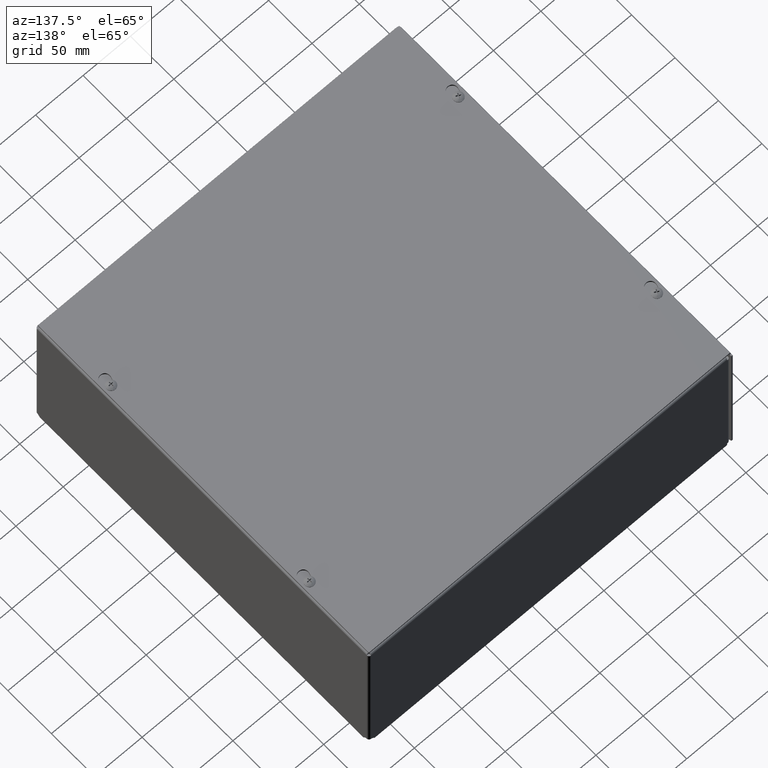
[diagram: clean part render]
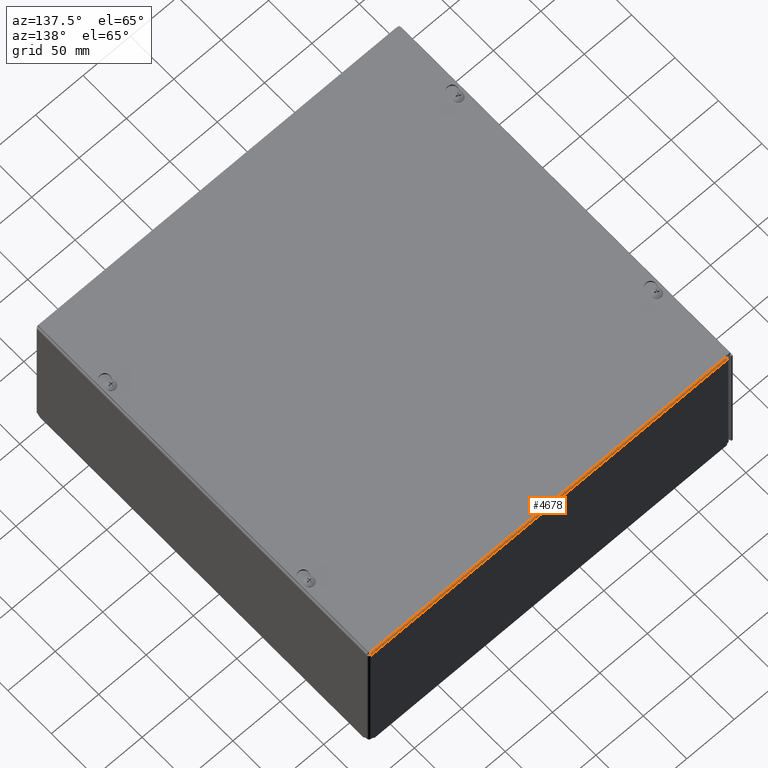
[diagram: same view with one face highlighted and labeled with its STEP entity id]
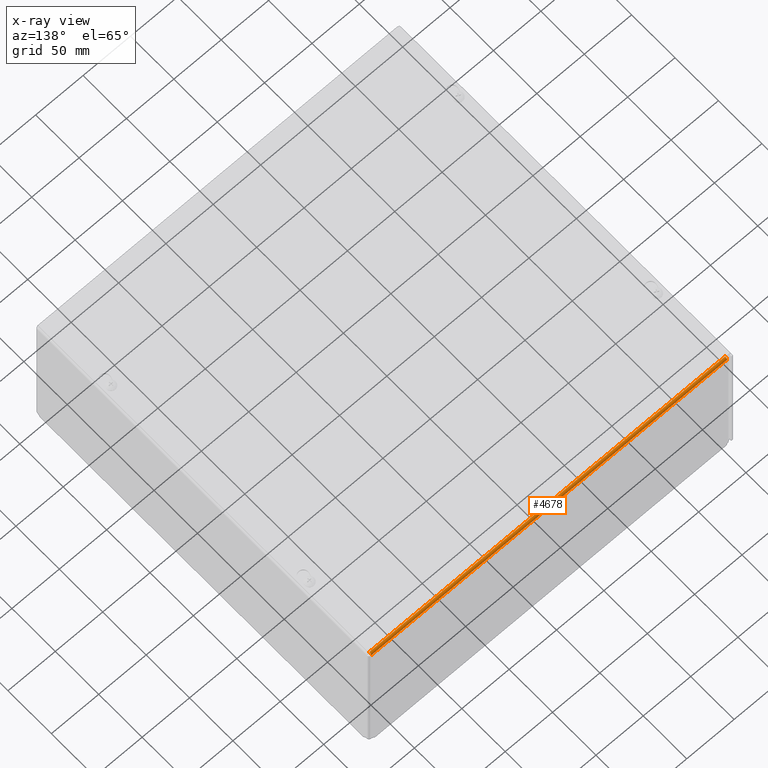
[diagram: x-ray of the same camera — body ghosted, the highlighted face saturated]
A machine part, auxiliary view. The second image highlights one B-rep face of the part: STEP entity #4678.
The next image is the same camera in x-ray: the body ghosted, the highlighted face saturated — about 0% of this face is hidden behind the body in this view.
In plain terms, the highlighted cylindrical surface (edge-blend (fillet) strip) has radius 2.3685 mm, axis along (1, 0, -0).
Its self-contained STEP definition (entity closure, byte-faithful):
#116=B_SPLINE_CURVE_WITH_KNOTS($,3,(#8407,#8408,#8409,#8410,#8411,#8412,
#8413),.UNSPECIFIED.,.F.,.F.,(4,3,4),(9.98864342678884E-014,0.897597901025787,
1.57079632679498),.UNSPECIFIED.);
#372=LINE($,#7845,#723);
#464=LINE($,#8386,#815);
#723=VECTOR($,#5692,14.8011043356626);
#815=VECTOR($,#5928,14.7900557922066);
#1075=CYLINDRICAL_SURFACE($,#5030,0.0932499999979968);
#1399=FACE_OUTER_BOUND($,#1754,.T.);
#1754=EDGE_LOOP($,(#3800,#3801,#3802,#3803));
#1941=CIRCLE($,#5027,0.0932500000000022);
#2217=VERTEX_POINT($,#7829);
#2223=VERTEX_POINT($,#7843);
#2278=VERTEX_POINT($,#8384);
#2279=VERTEX_POINT($,#8385);
#2682=EDGE_CURVE($,#2223,#2217,#372,.T.);
#2808=EDGE_CURVE($,#2278,#2279,#464,.T.);
#2814=EDGE_CURVE($,#2279,#2223,#1941,.T.);
#2820=EDGE_CURVE($,#2217,#2278,#116,.T.);
#3800=ORIENTED_EDGE($,*,*,#2808,.F.);
#3801=ORIENTED_EDGE($,*,*,#2820,.F.);
#3802=ORIENTED_EDGE($,*,*,#2682,.F.);
#3803=ORIENTED_EDGE($,*,*,#2814,.F.);
#4678=ADVANCED_FACE($,(#1399),#1075,.T.);
#5027=AXIS2_PLACEMENT_3D($,#8396,#5936,#5937);
#5030=AXIS2_PLACEMENT_3D($,#8406,#5947,#5948);
#5692=DIRECTION($,(-6.03083160806297E-014,-4.15095611572871E-018,1.));
#5928=DIRECTION($,(6.03083160806297E-014,-7.53140600059315E-017,-1.));
#5936=DIRECTION('center_axis',(6.03083160806297E-014,3.23365420621972E-018,
-1.));
#5937=DIRECTION('ref_axis',(1.49995300027461E-013,-1.,0.));
#5947=DIRECTION('center_axis',(-6.03083160806297E-014,-3.23365420621972E-018,
1.));
#5948=DIRECTION('ref_axis',(-1.,1.04899534353962E-014,-6.03083160806297E-014));
#7829=CARTESIAN_POINT('',(-7.56249999999976,-3.0625,-29.9903222833441));
#7843=CARTESIAN_POINT('',(-7.56249999999887,-3.0625,-44.7914266190068));
#7845=CARTESIAN_POINT($,(-7.56249999999909,-3.0625,-41.0878475942301));
#8384=CARTESIAN_POINT('',(-7.46924999999974,-3.15575,-30.0013708268002));
#8385=CARTESIAN_POINT('',(-7.46924999999885,-3.15575,-44.7914266190068));
#8386=CARTESIAN_POINT($,(-7.4692499999993,-3.15575,-37.4309275527879));
#8396=CARTESIAN_POINT('Origin',(-7.46924999999887,-3.0625,-44.7914266190067));
#8406=CARTESIAN_POINT('Origin',(-7.46924999999931,-3.0625,-37.3908744511754));
#8407=CARTESIAN_POINT('Ctrl Pts',(-7.56249999999975,-3.06250000000001,-29.9903222833441));
#8408=CARTESIAN_POINT('Ctrl Pts',(-7.56249999999975,-3.09040033475689,-29.992426767812));
#8409=CARTESIAN_POINT('Ctrl Pts',(-7.54910647221852,-3.1179880539121,-29.9945312522798));
#8410=CARTESIAN_POINT('Ctrl Pts',(-7.52740358878079,-3.13538561737747,-29.9966357367476));
#8411=CARTESIAN_POINT('Ctrl Pts',(-7.51112642620249,-3.1484337899765,-29.9982141000985));
#8412=CARTESIAN_POINT('Ctrl Pts',(-7.49017525106741,-3.15575,-29.9997924634493));
#8413=CARTESIAN_POINT('Ctrl Pts',(-7.46924999999975,-3.15575,-30.0013708268002));